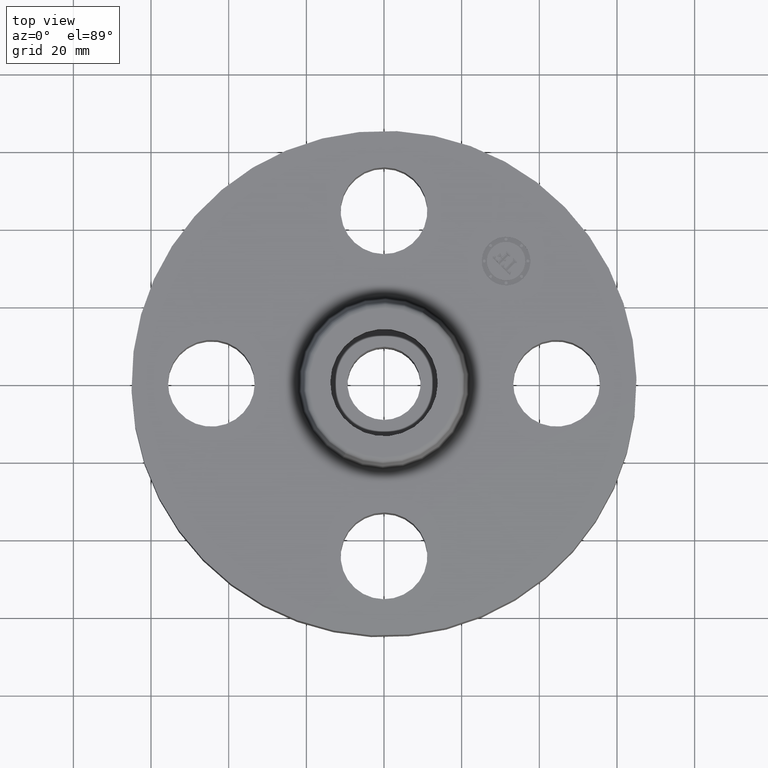
[diagram: clean part render]
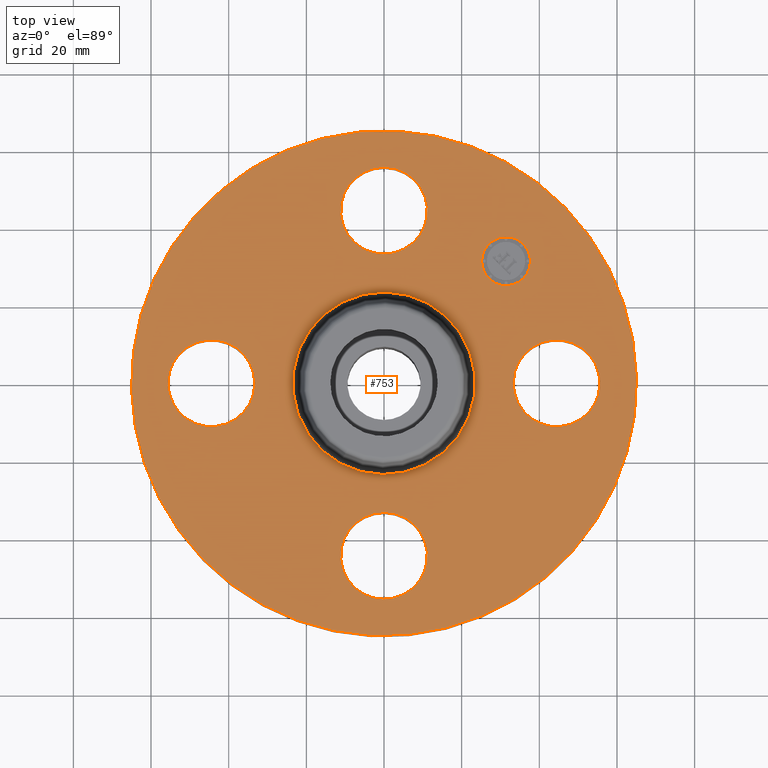
[diagram: same view with one face highlighted and labeled with its STEP entity id]
A machine part, top view. The second image highlights one B-rep face of the part: STEP entity #753.
In plain terms, the highlighted planar face has unit normal (0, 0, -1).
Its self-contained STEP definition (entity closure, byte-faithful):
#305=AXIS2_PLACEMENT_3D('Circle Axis2P3D',#303,#304,$) ;
#324=AXIS2_PLACEMENT_3D('Circle Axis2P3D',#322,#323,$) ;
#341=AXIS2_PLACEMENT_3D('Circle Axis2P3D',#339,#340,$) ;
#376=AXIS2_PLACEMENT_3D('Circle Axis2P3D',#374,#375,$) ;
#526=AXIS2_PLACEMENT_3D('Circle Axis2P3D',#524,#525,$) ;
#538=AXIS2_PLACEMENT_3D('Circle Axis2P3D',#536,#537,$) ;
#569=AXIS2_PLACEMENT_3D('Circle Axis2P3D',#567,#568,$) ;
#581=AXIS2_PLACEMENT_3D('Circle Axis2P3D',#579,#580,$) ;
#612=AXIS2_PLACEMENT_3D('Circle Axis2P3D',#610,#611,$) ;
#624=AXIS2_PLACEMENT_3D('Circle Axis2P3D',#622,#623,$) ;
#655=AXIS2_PLACEMENT_3D('Circle Axis2P3D',#653,#654,$) ;
#667=AXIS2_PLACEMENT_3D('Circle Axis2P3D',#665,#666,$) ;
#709=AXIS2_PLACEMENT_3D('Plane Axis2P3D',#706,#707,#708) ;
#737=AXIS2_PLACEMENT_3D('Circle Axis2P3D',#735,#736,$) ;
#746=AXIS2_PLACEMENT_3D('Circle Axis2P3D',#744,#745,$) ;
#300=CARTESIAN_POINT('Vertex',(-1.22732937883,-2.24661135845,1.)) ;
#303=CARTESIAN_POINT('Axis2P3D Location',(0.,0.,1.)) ;
#307=CARTESIAN_POINT('Vertex',(1.22732937883,2.24661135845,1.)) ;
#322=CARTESIAN_POINT('Axis2P3D Location',(0.,0.,1.)) ;
#339=CARTESIAN_POINT('Axis2P3D Location',(0.,0.,1.)) ;
#343=CARTESIAN_POINT('Vertex',(0.443634493838,0.812067493898,1.)) ;
#345=CARTESIAN_POINT('Vertex',(-0.443634493838,-0.812067493898,1.)) ;
#374=CARTESIAN_POINT('Axis2P3D Location',(0.,0.,1.)) ;
#514=CARTESIAN_POINT('Vertex',(0.210947236987,2.13613632724,1.)) ;
#521=CARTESIAN_POINT('Vertex',(-0.210947236987,1.36386367277,1.)) ;
#524=CARTESIAN_POINT('Axis2P3D Location',(-3.21469784777E-016,1.75000000001,1.)) ;
#536=CARTESIAN_POINT('Axis2P3D Location',(-3.21469784777E-016,1.75000000001,1.)) ;
#557=CARTESIAN_POINT('Vertex',(-2.13613632724,0.210947236987,1.)) ;
#564=CARTESIAN_POINT('Vertex',(-1.36386367277,-0.210947236987,1.)) ;
#567=CARTESIAN_POINT('Axis2P3D Location',(-1.75000000001,-2.14313189852E-016,1.)) ;
#579=CARTESIAN_POINT('Axis2P3D Location',(-1.75000000001,-2.14313189852E-016,1.)) ;
#600=CARTESIAN_POINT('Vertex',(-0.210947236987,-2.13613632724,1.)) ;
#607=CARTESIAN_POINT('Vertex',(0.210947236987,-1.36386367277,1.)) ;
#610=CARTESIAN_POINT('Axis2P3D Location',(1.07156594926E-016,-1.75000000001,1.)) ;
#622=CARTESIAN_POINT('Axis2P3D Location',(1.07156594926E-016,-1.75000000001,1.)) ;
#643=CARTESIAN_POINT('Vertex',(1.36386367277,0.210947236987,1.)) ;
#650=CARTESIAN_POINT('Vertex',(2.13613632724,-0.210947236987,1.)) ;
#653=CARTESIAN_POINT('Axis2P3D Location',(1.75000000001,0.,1.)) ;
#665=CARTESIAN_POINT('Axis2P3D Location',(1.75000000001,0.,1.)) ;
#706=CARTESIAN_POINT('Axis2P3D Location',(0.,2.56000000001,1.)) ;
#735=CARTESIAN_POINT('Axis2P3D Location',(1.23743686708,1.23743686708,1.)) ;
#739=CARTESIAN_POINT('Vertex',(1.06242793874,1.41244579543,1.)) ;
#741=CARTESIAN_POINT('Vertex',(1.41244579543,1.06242793874,1.)) ;
#744=CARTESIAN_POINT('Axis2P3D Location',(1.23743686708,1.23743686708,1.)) ;
#304=DIRECTION('Axis2P3D Direction',(0.,0.,-0.0393700787402)) ;
#323=DIRECTION('Axis2P3D Direction',(0.,0.,-0.0393700787402)) ;
#340=DIRECTION('Axis2P3D Direction',(0.,0.,-0.0393700787402)) ;
#375=DIRECTION('Axis2P3D Direction',(0.,0.,-0.0393700787402)) ;
#525=DIRECTION('Axis2P3D Direction',(0.,0.,-0.0393700787402)) ;
#537=DIRECTION('Axis2P3D Direction',(0.,0.,-0.0393700787402)) ;
#568=DIRECTION('Axis2P3D Direction',(-0.,0.,-0.0393700787402)) ;
#580=DIRECTION('Axis2P3D Direction',(-0.,0.,-0.0393700787402)) ;
#611=DIRECTION('Axis2P3D Direction',(0.,-0.,-0.0393700787402)) ;
#623=DIRECTION('Axis2P3D Direction',(0.,-0.,-0.0393700787402)) ;
#654=DIRECTION('Axis2P3D Direction',(0.,-0.,-0.0393700787402)) ;
#666=DIRECTION('Axis2P3D Direction',(0.,-0.,-0.0393700787402)) ;
#707=DIRECTION('Axis2P3D Direction',(0.,0.,-0.0393700787402)) ;
#708=DIRECTION('Axis2P3D XDirection',(0.0393700787402,0.,0.)) ;
#736=DIRECTION('Axis2P3D Direction',(0.,0.,-0.0393700787402)) ;
#745=DIRECTION('Axis2P3D Direction',(0.,0.,-0.0393700787402)) ;
#712=ORIENTED_EDGE('',*,*,#326,.F.) ;
#713=ORIENTED_EDGE('',*,*,#309,.F.) ;
#716=ORIENTED_EDGE('',*,*,#657,.T.) ;
#717=ORIENTED_EDGE('',*,*,#669,.T.) ;
#720=ORIENTED_EDGE('',*,*,#378,.T.) ;
#721=ORIENTED_EDGE('',*,*,#347,.T.) ;
#724=ORIENTED_EDGE('',*,*,#614,.T.) ;
#725=ORIENTED_EDGE('',*,*,#626,.T.) ;
#728=ORIENTED_EDGE('',*,*,#571,.T.) ;
#729=ORIENTED_EDGE('',*,*,#583,.T.) ;
#732=ORIENTED_EDGE('',*,*,#528,.T.) ;
#733=ORIENTED_EDGE('',*,*,#540,.T.) ;
#750=ORIENTED_EDGE('',*,*,#743,.T.) ;
#751=ORIENTED_EDGE('',*,*,#748,.T.) ;
#718=FACE_BOUND('',#715,.T.) ;
#722=FACE_BOUND('',#719,.T.) ;
#726=FACE_BOUND('',#723,.T.) ;
#730=FACE_BOUND('',#727,.T.) ;
#734=FACE_BOUND('',#731,.T.) ;
#752=FACE_BOUND('',#749,.T.) ;
#753=ADVANCED_FACE('PartBody',(#714,#718,#722,#726,#730,#734,#752),#710,.F.) ;
#306=CIRCLE('generated circle',#305,2.56000000001) ;
#325=CIRCLE('generated circle',#324,2.56000000001) ;
#342=CIRCLE('generated circle',#341,0.925345977874) ;
#377=CIRCLE('generated circle',#376,0.925345977874) ;
#527=CIRCLE('generated circle',#526,0.440000000002) ;
#539=CIRCLE('generated circle',#538,0.440000000002) ;
#570=CIRCLE('generated circle',#569,0.440000000002) ;
#582=CIRCLE('generated circle',#581,0.440000000002) ;
#613=CIRCLE('generated circle',#612,0.440000000002) ;
#625=CIRCLE('generated circle',#624,0.440000000002) ;
#656=CIRCLE('generated circle',#655,0.440000000002) ;
#668=CIRCLE('generated circle',#667,0.440000000002) ;
#738=CIRCLE('generated circle',#737,0.247500000001) ;
#747=CIRCLE('generated circle',#746,0.247500000001) ;
#309=EDGE_CURVE('',#301,#308,#306,.T.) ;
#326=EDGE_CURVE('',#308,#301,#325,.T.) ;
#347=EDGE_CURVE('',#344,#346,#342,.T.) ;
#378=EDGE_CURVE('',#346,#344,#377,.T.) ;
#528=EDGE_CURVE('',#515,#522,#527,.T.) ;
#540=EDGE_CURVE('',#522,#515,#539,.T.) ;
#571=EDGE_CURVE('',#558,#565,#570,.T.) ;
#583=EDGE_CURVE('',#565,#558,#582,.T.) ;
#614=EDGE_CURVE('',#601,#608,#613,.T.) ;
#626=EDGE_CURVE('',#608,#601,#625,.T.) ;
#657=EDGE_CURVE('',#644,#651,#656,.T.) ;
#669=EDGE_CURVE('',#651,#644,#668,.T.) ;
#743=EDGE_CURVE('',#740,#742,#738,.T.) ;
#748=EDGE_CURVE('',#742,#740,#747,.T.) ;
#711=EDGE_LOOP('',(#712,#713)) ;
#715=EDGE_LOOP('',(#716,#717)) ;
#719=EDGE_LOOP('',(#720,#721)) ;
#723=EDGE_LOOP('',(#724,#725)) ;
#727=EDGE_LOOP('',(#728,#729)) ;
#731=EDGE_LOOP('',(#732,#733)) ;
#749=EDGE_LOOP('',(#750,#751)) ;
#714=FACE_OUTER_BOUND('',#711,.T.) ;
#710=PLANE('',#709) ;
#301=VERTEX_POINT('',#300) ;
#308=VERTEX_POINT('',#307) ;
#344=VERTEX_POINT('',#343) ;
#346=VERTEX_POINT('',#345) ;
#515=VERTEX_POINT('',#514) ;
#522=VERTEX_POINT('',#521) ;
#558=VERTEX_POINT('',#557) ;
#565=VERTEX_POINT('',#564) ;
#601=VERTEX_POINT('',#600) ;
#608=VERTEX_POINT('',#607) ;
#644=VERTEX_POINT('',#643) ;
#651=VERTEX_POINT('',#650) ;
#740=VERTEX_POINT('',#739) ;
#742=VERTEX_POINT('',#741) ;